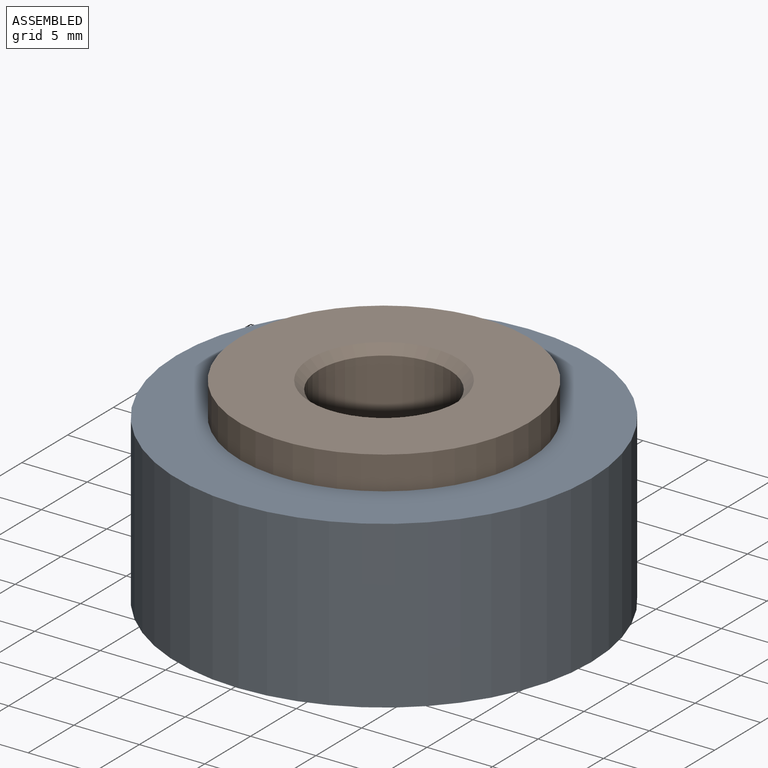
[diagram: assembled view]
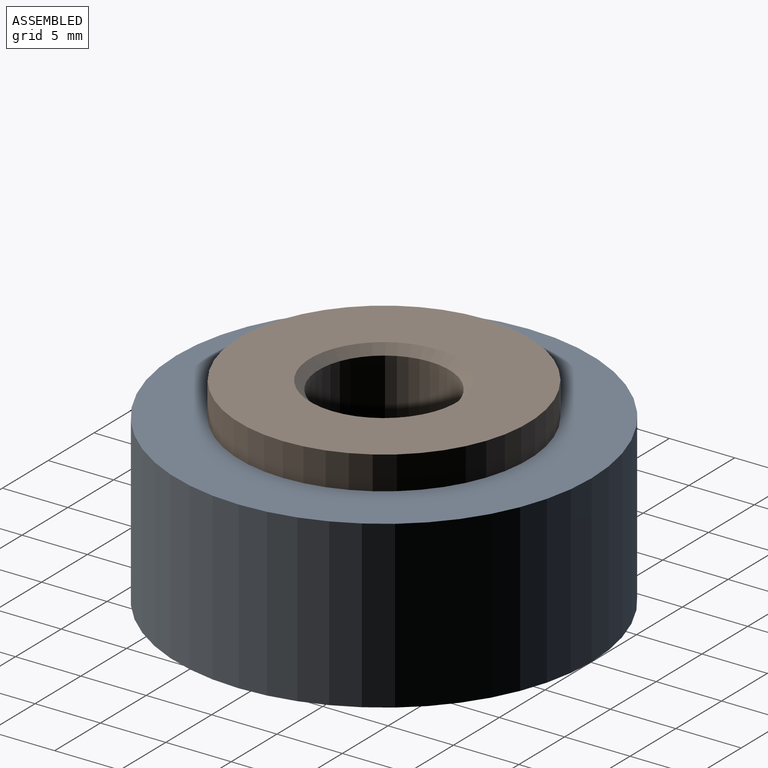
[diagram: assembled view, second angle]
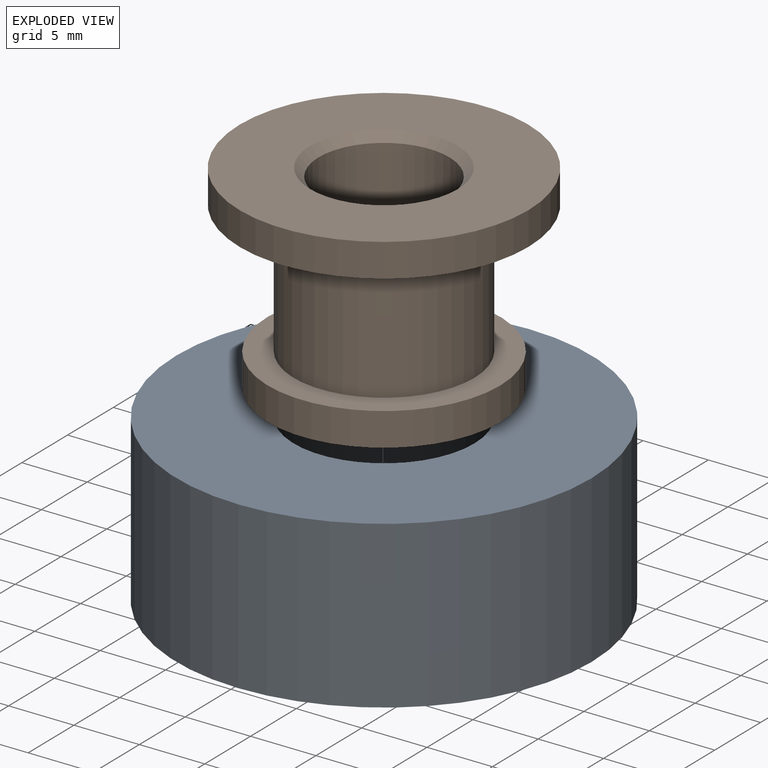
[diagram: exploded view]
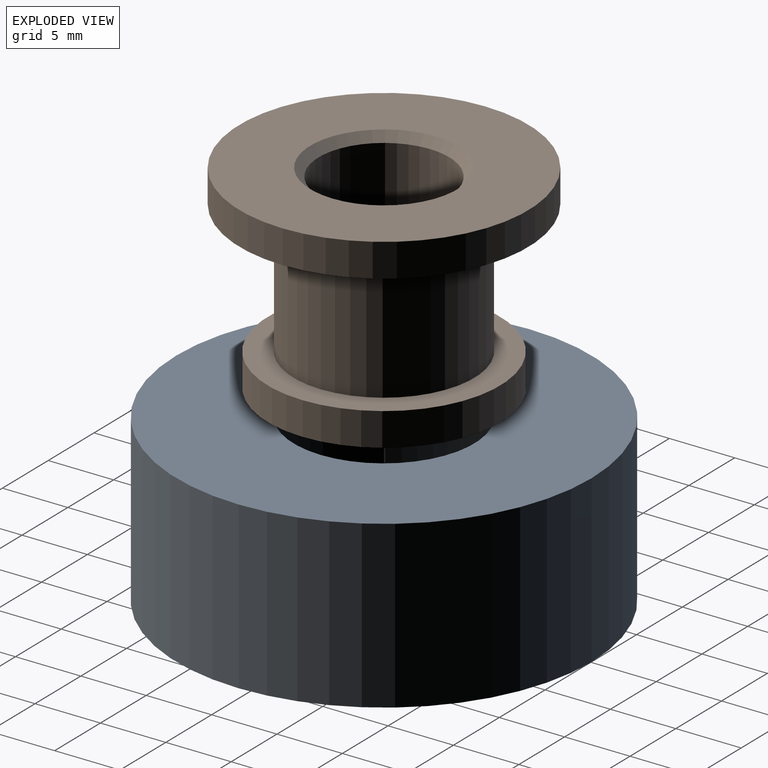
[diagram: exploded view, second angle]
ASSEMBLY  parts=2 mates=2
PART A: 6 faces, bbox 31.8x31.8x12.7 mm
  f0: cylinder r=6.91mm len=13.81mm, axis (0,0,-1), area 440.8mm2, adj f1,f5
  f1: plane 17.78x17.78mm, normal (0,0,-1), area 98.5mm2, adj f0,f2
  f2: cylinder r=8.89mm len=17.78mm, axis (0,0,-1), area 141.9mm2, adj f1,f3
  f3: plane 31.75x31.75mm, normal (0,0,-1), area 543.4mm2, adj f2,f4
  f4: cylinder r=15.88mm len=31.75mm, axis (0,0,-1), area 1266.8mm2, adj f3,f5
  f5: plane 31.75x31.75mm, normal (0,0,1), area 641.9mm2, adj f0,f4
PART B: 10 faces, bbox 22.1x22.1x15.2 mm
  f0: plane 22.1x22.1mm, normal (0,0,1), area 283.8mm2, adj f7,f9
  f1: cylinder r=5mm len=13.97mm, axis (0,0,-1), area 438.9mm2, adj f8,f9
  f2: plane 17.78x17.78mm, normal (0,0,-1), area 148.5mm2, adj f3,f8
  f3: cylinder r=8.89mm len=17.78mm, axis (0,0,-1), area 141.9mm2, adj f2,f4
  f4: plane 17.78x17.78mm, normal (0,0,1), area 98.5mm2, adj f3,f5
  f5: cylinder r=6.9mm len=13.81mm, axis (0,0,-1), area 440.8mm2, adj f4,f6
  f6: plane 22.1x22.1mm, normal (0,0,-1), area 233.7mm2, adj f5,f7
  f7: cylinder r=11.05mm len=22.1mm, axis (0,0,-1), area 176.3mm2, adj f0,f6
  f8: cone r=5mm half-angle=45deg, axis (0,0,-1), area 30mm2, adj f1,f2
  f9: cone r=5.64mm half-angle=45deg, axis (0,0,1), area 30mm2, adj f0,f1
PLACE A t=(16.19,5.02,-2.69)mm
PLACE B t=(16.19,5.02,-2.69)mm
MATE planar A.f0 <-> B.f1  axis (0,0,-1) through (16.19,5.02,-0.15)mm
MATE cylindrical B.f1 <-> A.f0  axis (0,0,1) through (16.19,5.02,12.55)mm
